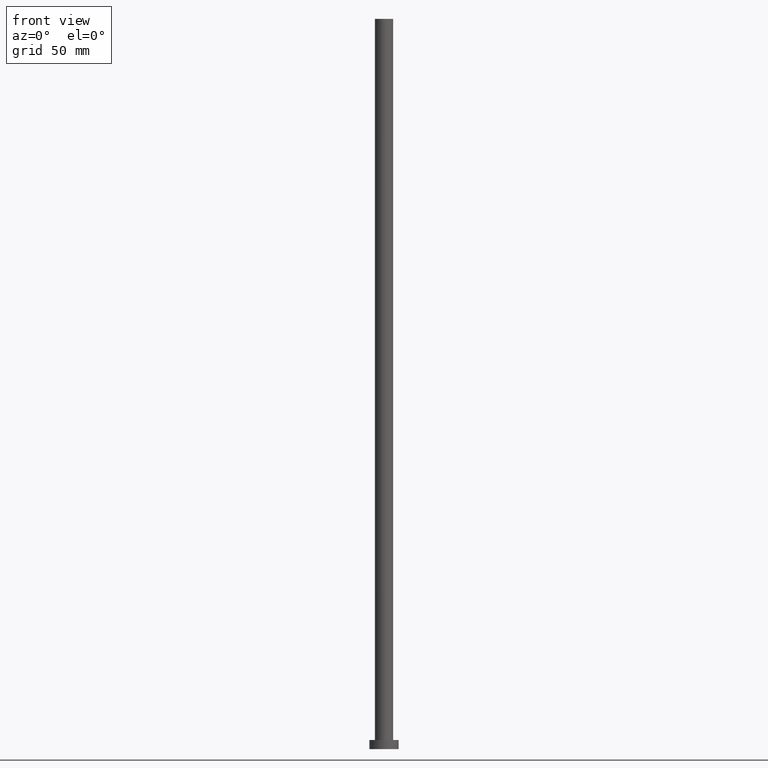
[diagram: clean part render]
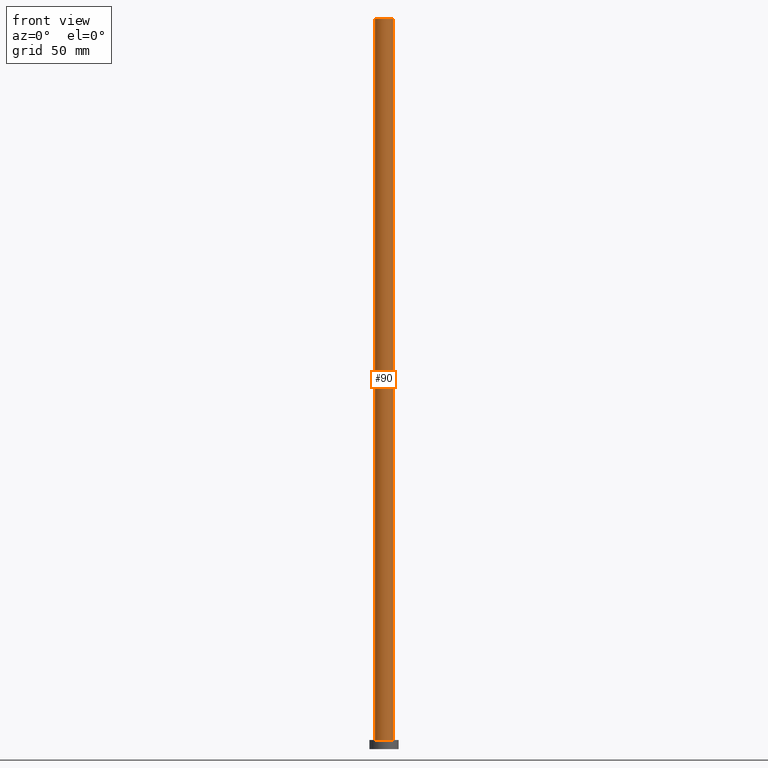
[diagram: same view with one face highlighted and labeled with its STEP entity id]
A machine part, front view. The second image highlights one B-rep face of the part: STEP entity #90.
In plain terms, the highlighted cylindrical surface (edge-blend (fillet) strip) has radius 5 mm, axis along (-0, -0, -1).
Its self-contained STEP definition (entity closure, byte-faithful):
#21 = CARTESIAN_POINT ( 'NONE',  ( -5.000000000000000000, 0.000000000000000000, 400.0000000000000000 ) ) ;
#37 = DIRECTION ( 'NONE',  ( -0.000000000000000000, -0.000000000000000000, -1.000000000000000000 ) ) ;
#44 = DIRECTION ( 'NONE',  ( 1.000000000000000000, 0.000000000000000000, 0.000000000000000000 ) ) ;
#45 = ORIENTED_EDGE ( 'NONE', *, *, #217, .T. ) ;
#49 = VECTOR ( 'NONE', #93, 1000.000000000000000 ) ;
#50 = DIRECTION ( 'NONE',  ( 0.000000000000000000, 0.000000000000000000, 1.000000000000000000 ) ) ;
#52 = DIRECTION ( 'NONE',  ( 1.000000000000000000, 0.000000000000000000, 0.000000000000000000 ) ) ;
#56 = CARTESIAN_POINT ( 'NONE',  ( -5.000000000000000000, 0.000000000000000000, 5.000000000000000000 ) ) ;
#66 = DIRECTION ( 'NONE',  ( -1.000000000000000000, 0.000000000000000000, 0.000000000000000000 ) ) ;
#72 = AXIS2_PLACEMENT_3D ( 'NONE', #145, #223, #44 ) ;
#84 = CYLINDRICAL_SURFACE ( 'NONE', #127, 5.000000000000000000 ) ;
#85 = EDGE_CURVE ( 'NONE', #221, #244, #178, .T. ) ;
#86 = ORIENTED_EDGE ( 'NONE', *, *, #100, .F. ) ;
#90 = ADVANCED_FACE ( 'NONE', ( #106 ), #84, .T. ) ;
#93 = DIRECTION ( 'NONE',  ( -0.000000000000000000, -0.000000000000000000, -1.000000000000000000 ) ) ;
#95 = CIRCLE ( 'NONE', #72, 5.000000000000000000 ) ;
#100 = EDGE_CURVE ( 'NONE', #221, #246, #95, .T. ) ;
#106 = FACE_OUTER_BOUND ( 'NONE', #208, .T. ) ;
#114 = VERTEX_POINT ( 'NONE', #148 ) ;
#123 = VECTOR ( 'NONE', #37, 1000.000000000000000 ) ;
#125 = ORIENTED_EDGE ( 'NONE', *, *, #85, .T. ) ;
#126 = EDGE_CURVE ( 'NONE', #246, #114, #133, .T. ) ;
#127 = AXIS2_PLACEMENT_3D ( 'NONE', #162, #242, #66 ) ;
#130 = CIRCLE ( 'NONE', #231, 5.000000000000000000 ) ;
#133 = LINE ( 'NONE', #238, #49 ) ;
#145 = CARTESIAN_POINT ( 'NONE',  ( 0.000000000000000000, 0.000000000000000000, 400.0000000000000000 ) ) ;
#147 = ORIENTED_EDGE ( 'NONE', *, *, #126, .F. ) ;
#148 = CARTESIAN_POINT ( 'NONE',  ( 5.000000000000000000, 6.123233995736765296E-16, 5.000000000000000000 ) ) ;
#155 = CARTESIAN_POINT ( 'NONE',  ( 0.000000000000000000, 0.000000000000000000, 5.000000000000000000 ) ) ;
#160 = CARTESIAN_POINT ( 'NONE',  ( -5.000000000000000000, 0.000000000000000000, 400.0000000000000000 ) ) ;
#162 = CARTESIAN_POINT ( 'NONE',  ( 0.000000000000000000, 0.000000000000000000, 400.0000000000000000 ) ) ;
#178 = LINE ( 'NONE', #160, #123 ) ;
#195 = CARTESIAN_POINT ( 'NONE',  ( 5.000000000000000000, 6.123233995736765296E-16, 400.0000000000000000 ) ) ;
#208 = EDGE_LOOP ( 'NONE', ( #147, #86, #125, #45 ) ) ;
#217 = EDGE_CURVE ( 'NONE', #244, #114, #130, .T. ) ;
#221 = VERTEX_POINT ( 'NONE', #21 ) ;
#223 = DIRECTION ( 'NONE',  ( 0.000000000000000000, 0.000000000000000000, 1.000000000000000000 ) ) ;
#231 = AXIS2_PLACEMENT_3D ( 'NONE', #155, #50, #52 ) ;
#238 = CARTESIAN_POINT ( 'NONE',  ( 5.000000000000000000, 6.123233995736765296E-16, 400.0000000000000000 ) ) ;
#242 = DIRECTION ( 'NONE',  ( -0.000000000000000000, -0.000000000000000000, -1.000000000000000000 ) ) ;
#244 = VERTEX_POINT ( 'NONE', #56 ) ;
#246 = VERTEX_POINT ( 'NONE', #195 ) ;